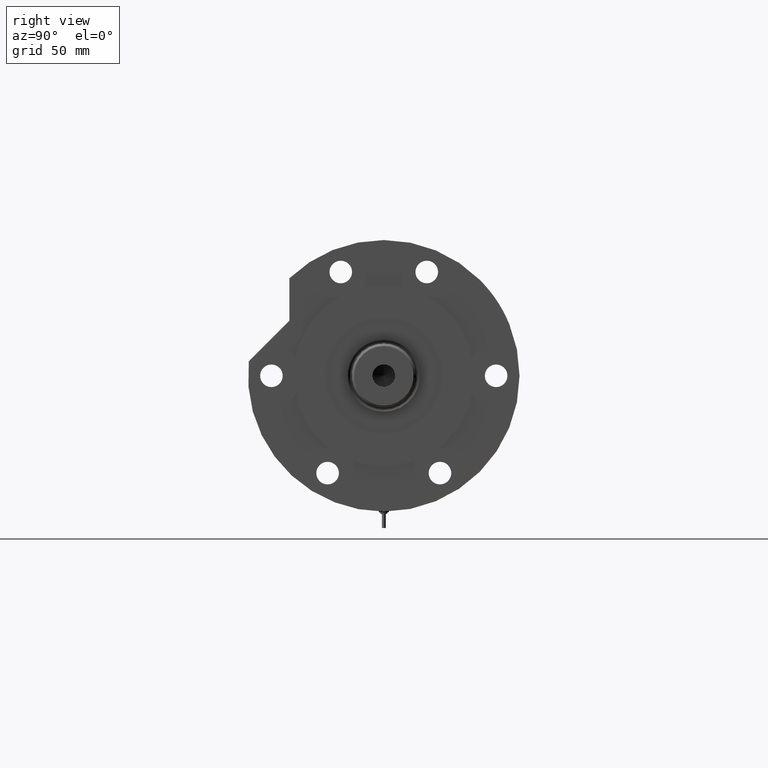
[diagram: clean part render]
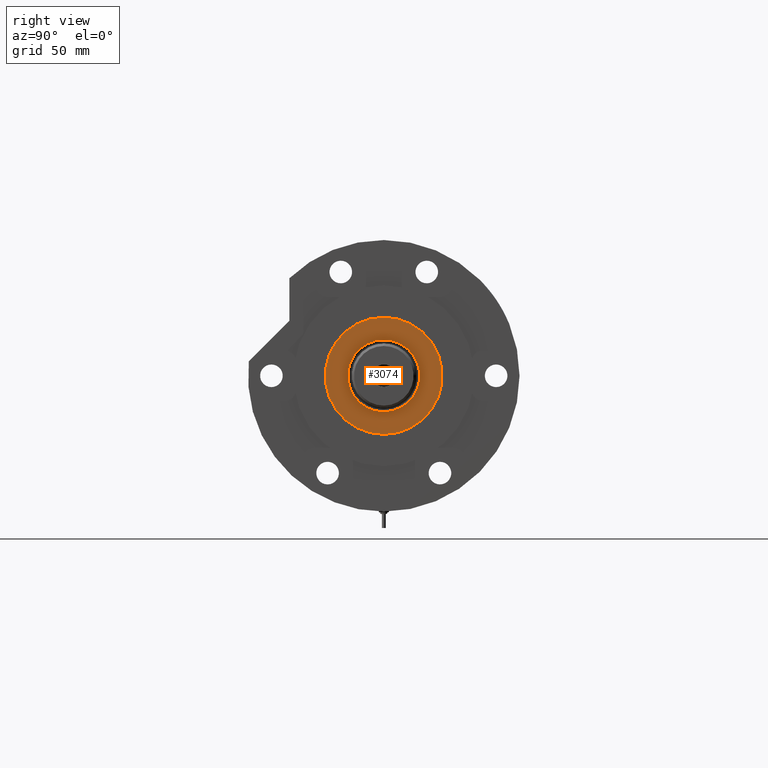
[diagram: same view with one face highlighted and labeled with its STEP entity id]
A machine part, right view. The second image highlights one B-rep face of the part: STEP entity #3074.
In plain terms, the highlighted planar face has unit normal (1, 0, -0).
Its self-contained STEP definition (entity closure, byte-faithful):
#15 = EDGE_CURVE ( 'NONE', #7221, #4519, #2974, .T. ) ;
#176 = EDGE_CURVE ( 'NONE', #4519, #7221, #903, .T. ) ;
#528 = CARTESIAN_POINT ( 'NONE',  ( 0.000000000000000000, 0.000000000000000000, 59.89999999999999147 ) ) ;
#856 = CARTESIAN_POINT ( 'NONE',  ( 23.05000000000002913, 0.000000000000000000, 59.89999999999999147 ) ) ;
#890 = VERTEX_POINT ( 'NONE', #7307 ) ;
#903 = CIRCLE ( 'NONE', #5168, 37.50000000000000711 ) ;
#1012 = ORIENTED_EDGE ( 'NONE', *, *, #176, .T. ) ;
#1135 = DIRECTION ( 'NONE',  ( 1.000000000000000000, 0.000000000000000000, 0.000000000000000000 ) ) ;
#1329 = CIRCLE ( 'NONE', #5582, 23.05000000000002913 ) ;
#1380 = CARTESIAN_POINT ( 'NONE',  ( -37.50000000000000711, 0.000000000000000000, 59.89999999999999147 ) ) ;
#1515 = AXIS2_PLACEMENT_3D ( 'NONE', #1610, #2212, #6862 ) ;
#1610 = CARTESIAN_POINT ( 'NONE',  ( 0.000000000000000000, 0.000000000000000000, 59.89999999999999147 ) ) ;
#2168 = ORIENTED_EDGE ( 'NONE', *, *, #3914, .T. ) ;
#2179 = CARTESIAN_POINT ( 'NONE',  ( 0.000000000000000000, 0.000000000000000000, 59.89999999999999147 ) ) ;
#2212 = DIRECTION ( 'NONE',  ( 0.000000000000000000, 0.000000000000000000, 1.000000000000000000 ) ) ;
#2284 = AXIS2_PLACEMENT_3D ( 'NONE', #5613, #3283, #5767 ) ;
#2790 = ORIENTED_EDGE ( 'NONE', *, *, #15, .T. ) ;
#2863 = EDGE_LOOP ( 'NONE', ( #2168, #7369 ) ) ;
#2974 = CIRCLE ( 'NONE', #1515, 37.50000000000000711 ) ;
#3074 = ADVANCED_FACE ( 'NONE', ( #4471, #3937 ), #5158, .T. ) ;
#3260 = AXIS2_PLACEMENT_3D ( 'NONE', #528, #4024, #1135 ) ;
#3283 = DIRECTION ( 'NONE',  ( 0.000000000000000000, 0.000000000000000000, 1.000000000000000000 ) ) ;
#3785 = EDGE_LOOP ( 'NONE', ( #1012, #2790 ) ) ;
#3914 = EDGE_CURVE ( 'NONE', #6888, #890, #4355, .T. ) ;
#3937 = FACE_OUTER_BOUND ( 'NONE', #3785, .T. ) ;
#4001 = CARTESIAN_POINT ( 'NONE',  ( 0.000000000000000000, 0.000000000000000000, 59.89999999999999147 ) ) ;
#4024 = DIRECTION ( 'NONE',  ( -0.000000000000000000, -0.000000000000000000, -1.000000000000000000 ) ) ;
#4153 = DIRECTION ( 'NONE',  ( 1.000000000000000000, 0.000000000000000000, 0.000000000000000000 ) ) ;
#4355 = CIRCLE ( 'NONE', #3260, 23.05000000000002913 ) ;
#4471 = FACE_BOUND ( 'NONE', #2863, .T. ) ;
#4507 = DIRECTION ( 'NONE',  ( -0.000000000000000000, -0.000000000000000000, -1.000000000000000000 ) ) ;
#4519 = VERTEX_POINT ( 'NONE', #1380 ) ;
#5158 = PLANE ( 'NONE',  #2284 ) ;
#5168 = AXIS2_PLACEMENT_3D ( 'NONE', #4001, #5791, #4153 ) ;
#5582 = AXIS2_PLACEMENT_3D ( 'NONE', #2179, #4507, #5726 ) ;
#5613 = CARTESIAN_POINT ( 'NONE',  ( 0.000000000000000000, 0.000000000000000000, 59.89999999999999147 ) ) ;
#5726 = DIRECTION ( 'NONE',  ( 1.000000000000000000, 0.000000000000000000, 0.000000000000000000 ) ) ;
#5767 = DIRECTION ( 'NONE',  ( 1.000000000000000000, 0.000000000000000000, -0.000000000000000000 ) ) ;
#5791 = DIRECTION ( 'NONE',  ( 0.000000000000000000, 0.000000000000000000, 1.000000000000000000 ) ) ;
#5894 = EDGE_CURVE ( 'NONE', #890, #6888, #1329, .T. ) ;
#6862 = DIRECTION ( 'NONE',  ( 1.000000000000000000, 0.000000000000000000, 0.000000000000000000 ) ) ;
#6888 = VERTEX_POINT ( 'NONE', #856 ) ;
#6899 = CARTESIAN_POINT ( 'NONE',  ( 37.50000000000000711, 4.592425496802575156E-15, 59.89999999999999147 ) ) ;
#7221 = VERTEX_POINT ( 'NONE', #6899 ) ;
#7307 = CARTESIAN_POINT ( 'NONE',  ( -23.05000000000002913, 2.822810872034651791E-15, 59.89999999999999147 ) ) ;
#7369 = ORIENTED_EDGE ( 'NONE', *, *, #5894, .T. ) ;